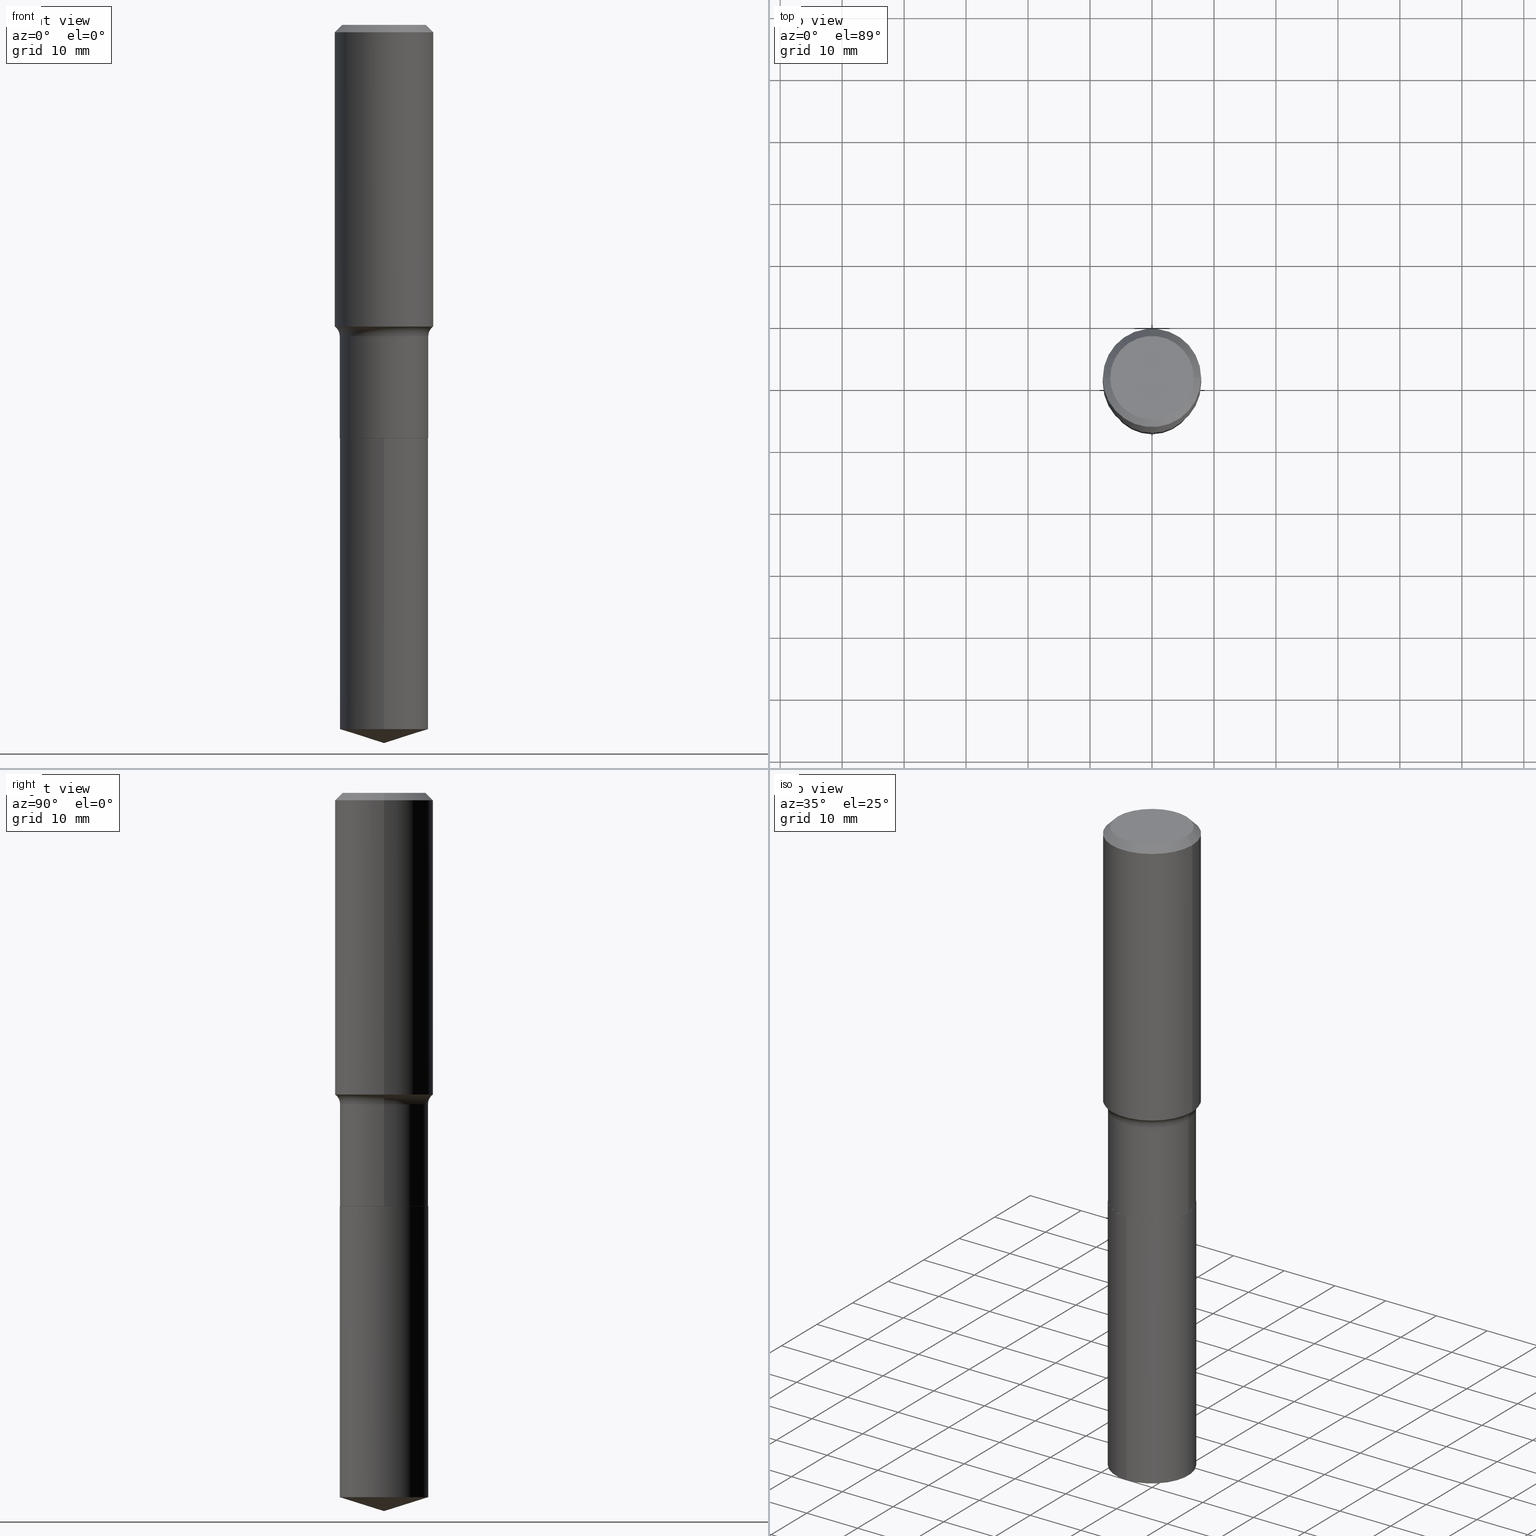
[diagram: canonical four-view strip — front | top / right | iso, engineering-drawing reading convention]
A machine part, canonical four-view strip (front | top / right | iso — engineering-drawing reading convention). The complete STEP part file that produces these views, byte-faithful:
ISO-10303-21;
HEADER;
FILE_DESCRIPTION (( 'STEP AP203' ),
    '1' );
FILE_NAME ('51366.STEP',
    '2024-04-19T12:53:06',
    ( '' ),
    ( '' ),
    'SwSTEP 2.0',
    'SolidWorks 2023',
    '' );
FILE_SCHEMA (( 'CONFIG_CONTROL_DESIGN' ));
ENDSEC;

DATA;
#1 = AXIS2_PLACEMENT_3D ( 'NONE', #376, #208, #325 ) ;
#2 = ORIENTED_EDGE ( 'NONE', *, *, #140, .F. ) ;
#3 = CLOSED_SHELL ( 'NONE', ( #11, #237, #22, #327, #66, #229, #410, #111, #41, #151, #459, #89 ) ) ;
#4 = CIRCLE ( 'NONE', #393, 0.2812500000000000555 ) ;
#5 = EDGE_LOOP ( 'NONE', ( #153, #418 ) ) ;
#6 = DIRECTION ( 'NONE',  ( -2.445244707240388193E-29, 3.491802261286945362E-15, 1.000000000000000000 ) ) ;
#7 = CC_DESIGN_PERSON_AND_ORGANIZATION_ASSIGNMENT ( #19, #370, ( #315 ) ) ;
#8 = DIRECTION ( 'NONE',  ( -1.000000000000000000, 6.982962677686266711E-15, 0.000000000000000000 ) ) ;
#9 = VECTOR ( 'NONE', #10, 39.37007874015748143 ) ;
#10 = DIRECTION ( 'NONE',  ( -2.445244707240388193E-29, 3.491802261286945362E-15, 1.000000000000000000 ) ) ;
#11 = ADVANCED_FACE ( 'NONE', ( #268 ), #414, .T. ) ;
#12 = CARTESIAN_POINT ( 'NONE',  ( 0.000000000000000000, 0.000000000000000000, 0.000000000000000000 ) ) ;
#13 = APPLICATION_PROTOCOL_DEFINITION ( 'international standard', 'config_control_design', 1994, #154 ) ;
#14 = EDGE_CURVE ( 'NONE', #181, #228, #188, .T. ) ;
#15 = CARTESIAN_POINT ( 'NONE',  ( 0.3592500000000000138, -9.415128578324415923E-15, -1.978099999999999969 ) ) ;
#16 = CIRCLE ( 'NONE', #333, 0.07800000000000002764 ) ;
#17 = AXIS2_PLACEMENT_3D ( 'NONE', #423, #422, #42 ) ;
#18 = DIRECTION ( 'NONE',  ( 0.7071067811865453523, -7.319954787623248157E-15, -0.7071067811865496822 ) ) ;
#19 = PERSON_AND_ORGANIZATION ( #47, #49 ) ;
#20 = CARTESIAN_POINT ( 'NONE',  ( -0.3125000000000000555, 2.220446049250313475E-15, -1.537167215704658512E-29 ) ) ;
#21 = ORIENTED_EDGE ( 'NONE', *, *, #488, .F. ) ;
#22 = ADVANCED_FACE ( 'NONE', ( #269 ), #82, .T. ) ;
#23 = APPROVAL_ROLE ( '' ) ;
#24 = EDGE_CURVE ( 'NONE', #148, #383, #233, .T. ) ;
#25 = LENGTH_MEASURE_WITH_UNIT ( LENGTH_MEASURE( 0.02539999999999999897 ), #204 );
#26 = CARTESIAN_POINT ( 'NONE',  ( 1.115761581293109400E-28, -1.592966297429173824E-14, -4.562500000000000000 ) ) ;
#27 = SHAPE_DEFINITION_REPRESENTATION ( #231, #346 ) ;
#28 = AXIS2_PLACEMENT_3D ( 'NONE', #357, #86, #8 ) ;
#29 = DIRECTION ( 'NONE',  ( -0.7071067811865453523, 2.468850131082234184E-15, -0.7071067811865496822 ) ) ;
#30 = VECTOR ( 'NONE', #284, 39.37007874015748854 ) ;
#31 = LINE ( 'NONE', #413, #227 ) ;
#32 = ORIENTED_EDGE ( 'NONE', *, *, #306, .F. ) ;
#33 = CC_DESIGN_PERSON_AND_ORGANIZATION_ASSIGNMENT ( #395, #207, ( #234 ) ) ;
#34 = PLANE ( 'NONE',  #313 ) ;
#35 = LINE ( 'NONE', #26, #30 ) ;
#36 = ORIENTED_EDGE ( 'NONE', *, *, #147, .T. ) ;
#37 = CARTESIAN_POINT ( 'NONE',  ( 0.3125000000000000555, -2.182175836776958741E-15, 1.523805242436230356E-29 ) ) ;
#38 = PRODUCT_DEFINITION_FORMATION_WITH_SPECIFIED_SOURCE ( 'ANY', '', #234, .NOT_KNOWN. ) ;
#39 = VERTEX_POINT ( 'NONE', #490 ) ;
#40 = ORIENTED_EDGE ( 'NONE', *, *, #244, .T. ) ;
#41 = ADVANCED_FACE ( 'NONE', ( #145 ), #392, .T. ) ;
#42 = DIRECTION ( 'NONE',  ( 1.000000000000000000, -6.982962677686264344E-15, 0.000000000000000000 ) ) ;
#43 = ORIENTED_EDGE ( 'NONE', *, *, #134, .T. ) ;
#44 = AXIS2_PLACEMENT_3D ( 'NONE', #476, #55, #293 ) ;
#45 = DIRECTION ( 'NONE',  ( 1.000000000000000000, -6.982962677686264344E-15, 0.000000000000000000 ) ) ;
#46 = CARTESIAN_POINT ( 'NONE',  ( 0.000000000000000000, 0.000000000000000000, 0.000000000000000000 ) ) ;
#47 = PERSON ( 'UNSPECIFIED', 'UNSPECIFIED', 'UNSPECIFIED', ('UNSPECIFIED'), ('UNSPECIFIED'), ('UNSPECIFIED') ) ;
#48 = CARTESIAN_POINT ( 'NONE',  ( -1.963958253099198220E-15, -0.2812500000000091593, -2.624999999999998224 ) ) ;
#49 = ORGANIZATION ( 'UNSPECIFIED', 'UNSPECIFIED', '' ) ;
#50 = CC_DESIGN_PERSON_AND_ORGANIZATION_ASSIGNMENT ( #129, #214, ( #38 ) ) ;
#51 = DIRECTION ( 'NONE',  ( -1.000000000000000000, 6.982962677686265922E-15, -4.876176775795935793E-29 ) ) ;
#52 = DATE_AND_TIME ( #438, #248 ) ;
#53 = ADVANCED_FACE ( 'NONE', ( #314 ), #238, .F. ) ;
#54 = DIRECTION ( 'NONE',  ( -6.982962677686266711E-15, -1.000000000000000000, 3.500519750498668933E-15 ) ) ;
#55 = DIRECTION ( 'NONE',  ( -2.445468806185136597E-29, 3.491481338843145583E-15, 1.000000000000000000 ) ) ;
#56 = CARTESIAN_POINT ( 'NONE',  ( 4.837381845514818242E-29, -6.906499236365626153E-15, -1.978099999999999969 ) ) ;
#57 = PERSON_AND_ORGANIZATION ( #47, #49 ) ;
#58 = CIRCLE ( 'NONE', #344, 0.2656250000000000000 ) ;
#59 = LINE ( 'NONE', #482, #250 ) ;
#60 = EDGE_CURVE ( 'NONE', #270, #409, #178, .T. ) ;
#61 = DIRECTION ( 'NONE',  ( -0.7071067811864509833, 7.493145998870005484E-15, 0.7071067811866440511 ) ) ;
#62 = DATE_TIME_ROLE ( 'creation_date' ) ;
#63 = CYLINDRICAL_SURFACE ( 'NONE', #1, 0.2812500000000000000 ) ;
#64 = CARTESIAN_POINT ( 'NONE',  ( 4.684692963426050307E-29, -6.688499979489643797E-15, -1.915662531281288938 ) ) ;
#65 = ORIENTED_EDGE ( 'NONE', *, *, #190, .T. ) ;
#66 = ADVANCED_FACE ( 'NONE', ( #470 ), #390, .T. ) ;
#67 = VECTOR ( 'NONE', #29, 39.37007874015748143 ) ;
#68 = CLOSED_SHELL ( 'NONE', ( #419, #74, #380, #159, #53 ) ) ;
#69 = FACE_OUTER_BOUND ( 'NONE', #115, .T. ) ;
#70 = AXIS2_PLACEMENT_3D ( 'NONE', #294, #246, #479 ) ;
#71 = DIRECTION ( 'NONE',  ( -2.445468806185136597E-29, 3.491481338843145583E-15, 1.000000000000000000 ) ) ;
#72 = EDGE_LOOP ( 'NONE', ( #210, #477, #424, #109 ) ) ;
#73 = DIRECTION ( 'NONE',  ( 1.000000000000000000, 0.000000000000000000, 0.000000000000000000 ) ) ;
#74 = ADVANCED_FACE ( 'NONE', ( #273 ), #84, .T. ) ;
#75 = ORIENTED_EDGE ( 'NONE', *, *, #60, .F. ) ;
#76 = ORIENTED_EDGE ( 'NONE', *, *, #80, .F. ) ;
#77 = VECTOR ( 'NONE', #255, 39.37007874015748143 ) ;
#78 = AXIS2_PLACEMENT_3D ( 'NONE', #387, #464, #117 ) ;
#79 = ORIENTED_EDGE ( 'NONE', *, *, #469, .F. ) ;
#80 = EDGE_CURVE ( 'NONE', #148, #39, #150, .T. ) ;
#81 = ORIENTED_EDGE ( 'NONE', *, *, #384, .F. ) ;
#82 = CYLINDRICAL_SURFACE ( 'NONE', #78, 0.3125000000000000555 ) ;
#83 = ORIENTED_EDGE ( 'NONE', *, *, #332, .T. ) ;
#84 = CONICAL_SURFACE ( 'NONE', #356, 124.8659371009163266, 1.265363707695894568 ) ;
#85 = CARTESIAN_POINT ( 'NONE',  ( 1.094017835362827673E-28, -1.562086010770990401E-14, -4.473822215627787813 ) ) ;
#86 = DIRECTION ( 'NONE',  ( 2.445468806185136597E-29, -3.491481338843145583E-15, -1.000000000000000000 ) ) ;
#87 = DIRECTION ( 'NONE',  ( 1.000000000000000000, -6.982962677686268288E-15, 4.876286914311434227E-29 ) ) ;
#88 = LOCAL_TIME ( 8, 53, 6.000000000000000000, #286 ) ;
#89 = ADVANCED_FACE ( 'NONE', ( #236 ), #434, .T. ) ;
#90 = AXIS2_PLACEMENT_3D ( 'NONE', #98, #71, #180 ) ;
#91 = CARTESIAN_POINT ( 'NONE',  ( -0.2812499999999999445, -6.036544560754447675E-15, -1.978099999999999969 ) ) ;
#92 = PERSON_AND_ORGANIZATION ( #47, #49 ) ;
#93 = DIRECTION ( 'NONE',  ( -2.445468806185136597E-29, 3.491481338843145583E-15, 1.000000000000000000 ) ) ;
#94 = APPROVAL_STATUS ( 'not_yet_approved' ) ;
#95 = FACE_OUTER_BOUND ( 'NONE', #259, .T. ) ;
#96 = DATE_AND_TIME ( #162, #388 ) ;
#97 = CARTESIAN_POINT ( 'NONE',  ( -0.3592500000000000138, -4.353874458147466532E-15, -1.978099999999999969 ) ) ;
#98 = CARTESIAN_POINT ( 'NONE',  ( 1.146313502899289261E-30, -1.636631877582734044E-16, -0.04687500000000027062 ) ) ;
#99 = EDGE_LOOP ( 'NONE', ( #254, #257, #304 ) ) ;
#100 = PERSON_AND_ORGANIZATION ( #47, #49 ) ;
#101 =( NAMED_UNIT ( * ) SI_UNIT ( $, .STERADIAN. ) SOLID_ANGLE_UNIT ( ) );
#102 = CARTESIAN_POINT ( 'NONE',  ( 0.2656250000000000000, -2.064944296359970168E-15, 6.505936120484021373E-18 ) ) ;
#103 = EDGE_CURVE ( 'NONE', #232, #148, #489, .T. ) ;
#104 = ORIENTED_EDGE ( 'NONE', *, *, #244, .F. ) ;
#105 = CYLINDRICAL_SURFACE ( 'NONE', #267, 0.2812499999999999445 ) ;
#106 = ORIENTED_EDGE ( 'NONE', *, *, #226, .T. ) ;
#107 = CARTESIAN_POINT ( 'NONE',  ( 0.000000000000000000, 0.000000000000000000, 0.000000000000000000 ) ) ;
#108 = AXIS2_PLACEMENT_3D ( 'NONE', #212, #130, #175 ) ;
#109 = ORIENTED_EDGE ( 'NONE', *, *, #24, .F. ) ;
#110 = ORIENTED_EDGE ( 'NONE', *, *, #226, .F. ) ;
#111 = ADVANCED_FACE ( 'NONE', ( #354 ), #473, .T. ) ;
#112 = VERTEX_POINT ( 'NONE', #91 ) ;
#113 = APPROVAL_PERSON_ORGANIZATION ( #474, #397, #23 ) ;
#114 = CIRCLE ( 'NONE', #375, 0.2812499999999999445 ) ;
#115 = EDGE_LOOP ( 'NONE', ( #225, #378, #311, #189 ) ) ;
#116 = EDGE_LOOP ( 'NONE', ( #36, #249, #184, #295 ) ) ;
#117 = DIRECTION ( 'NONE',  ( 1.000000000000000000, -6.982962677686266711E-15, 4.876176775795936353E-29 ) ) ;
#118 = DIRECTION ( 'NONE',  ( -2.445468806185136597E-29, 3.491481338843145583E-15, 1.000000000000000000 ) ) ;
#119 = DIRECTION ( 'NONE',  ( 1.000000000000000000, -6.982962677686264344E-15, 0.000000000000000000 ) ) ;
#120 = EDGE_CURVE ( 'NONE', #450, #228, #219, .T. ) ;
#121 = CARTESIAN_POINT ( 'NONE',  ( -7.955031918821650812E-47, 1.135767727816383927E-32, 3.252968060235157842E-18 ) ) ;
#122 = DIRECTION ( 'NONE',  ( -6.982962677686266711E-15, -1.000000000000000000, 3.885294924322507688E-15 ) ) ;
#123 = AXIS2_PLACEMENT_3D ( 'NONE', #107, #417, #73 ) ;
#124 = AXIS2_PLACEMENT_3D ( 'NONE', #256, #398, #258 ) ;
#125 = DIRECTION ( 'NONE',  ( -6.982962677686266711E-15, -1.000000000000000000, 3.885294924322507688E-15 ) ) ;
#126 = APPROVAL_STATUS ( 'not_yet_approved' ) ;
#127 = LINE ( 'NONE', #215, #77 ) ;
#128 = CARTESIAN_POINT ( 'NONE',  ( 0.3125000000000000000, -2.307568812061876870E-15, -0.04687500000000027062 ) ) ;
#129 = PERSON_AND_ORGANIZATION ( #47, #49 ) ;
#130 = DIRECTION ( 'NONE',  ( -2.445468806185136597E-29, 3.491481338843145583E-15, 1.000000000000000000 ) ) ;
#131 = CARTESIAN_POINT ( 'NONE',  ( 4.837381845514818242E-29, -6.906499236365626153E-15, -1.978099999999999969 ) ) ;
#132 = APPROVAL_PERSON_ORGANIZATION ( #100, #386, #319 ) ;
#133 = AXIS2_PLACEMENT_3D ( 'NONE', #121, #276, #51 ) ;
#134 = EDGE_CURVE ( 'NONE', #224, #310, #277, .T. ) ;
#135 = CARTESIAN_POINT ( 'NONE',  ( -0.2656250000000000000, 1.936681055139549843E-15, 6.505936120457058354E-18 ) ) ;
#136 = DIRECTION ( 'NONE',  ( -2.445468806185136597E-29, 3.491481338843145583E-15, 1.000000000000000000 ) ) ;
#137 = ORIENTED_EDGE ( 'NONE', *, *, #469, .T. ) ;
#138 = DIRECTION ( 'NONE',  ( -2.445468806185136597E-29, 3.491481338843145583E-15, 1.000000000000000000 ) ) ;
#139 = DIRECTION ( 'NONE',  ( 1.000000000000000000, -6.982962677686268288E-15, 0.000000000000000000 ) ) ;
#140 = EDGE_CURVE ( 'NONE', #228, #270, #274, .T. ) ;
#141 = EDGE_LOOP ( 'NONE', ( #65, #196, #75, #2 ) ) ;
#142 = CARTESIAN_POINT ( 'NONE',  ( 6.419355616235982445E-29, -9.165138514463255034E-15, -2.624999999999999556 ) ) ;
#143 = FACE_OUTER_BOUND ( 'NONE', #491, .T. ) ;
#144 = ORIENTED_EDGE ( 'NONE', *, *, #103, .T. ) ;
#145 = FACE_OUTER_BOUND ( 'NONE', #402, .T. ) ;
#146 = ORIENTED_EDGE ( 'NONE', *, *, #147, .F. ) ;
#147 = EDGE_CURVE ( 'NONE', #310, #224, #290, .T. ) ;
#148 = VERTEX_POINT ( 'NONE', #316 ) ;
#149 = SECURITY_CLASSIFICATION ( '', '', #328 ) ;
#150 = CIRCLE ( 'NONE', #321, 0.07800000000000002764 ) ;
#151 = ADVANCED_FACE ( 'NONE', ( #396 ), #197, .F. ) ;
#152 = AXIS2_PLACEMENT_3D ( 'NONE', #56, #408, #329 ) ;
#153 = ORIENTED_EDGE ( 'NONE', *, *, #384, .T. ) ;
#154 = APPLICATION_CONTEXT ( 'configuration controlled 3d designs of mechanical parts and assemblies' ) ;
#155 = EDGE_LOOP ( 'NONE', ( #421, #43, #443, #104 ) ) ;
#156 = CARTESIAN_POINT ( 'NONE',  ( -1.591006383764330162E-46, 2.271535455632767854E-32, 6.505936120470315685E-18 ) ) ;
#157 = DIRECTION ( 'NONE',  ( -2.445468806185136597E-29, 3.491481338843145583E-15, 1.000000000000000000 ) ) ;
#158 = VECTOR ( 'NONE', #186, 39.37007874015748143 ) ;
#159 = ADVANCED_FACE ( 'NONE', ( #430 ), #312, .T. ) ;
#160 = DIRECTION ( 'NONE',  ( 6.982962677686265922E-15, 1.000000000000000000, -3.491802261286945362E-15 ) ) ;
#161 = LINE ( 'NONE', #209, #200 ) ;
#162 = CALENDAR_DATE ( 2024, 19, 4 ) ;
#163 = EDGE_CURVE ( 'NONE', #301, #348, #58, .T. ) ;
#164 = CARTESIAN_POINT ( 'NONE',  ( 6.419355616235982445E-29, -9.165138514463255034E-15, -2.624999999999999556 ) ) ;
#165 = AXIS2_PLACEMENT_3D ( 'NONE', #199, #93, #45 ) ;
#166 = AXIS2_PLACEMENT_3D ( 'NONE', #221, #407, #484 ) ;
#167 = DATE_AND_TIME ( #202, #412 ) ;
#168 = CARTESIAN_POINT ( 'NONE',  ( 1.998401444325391424E-15, 0.2812499999999908407, -2.625000000000000444 ) ) ;
#169 = LINE ( 'NONE', #20, #179 ) ;
#170 = ORIENTED_EDGE ( 'NONE', *, *, #488, .T. ) ;
#171 = APPROVAL_DATE_TIME ( #292, #397 ) ;
#172 = CARTESIAN_POINT ( 'NONE',  ( 4.837381845514818242E-29, -6.906499236365626153E-15, -1.978099999999999969 ) ) ;
#173 = DIRECTION ( 'NONE',  ( -2.445244707240388193E-29, 3.491802261286945362E-15, 1.000000000000000000 ) ) ;
#174 = EDGE_LOOP ( 'NONE', ( #32, #345, #223, #177 ) ) ;
#175 = DIRECTION ( 'NONE',  ( 1.000000000000000000, -6.982962677686266711E-15, 0.000000000000000000 ) ) ;
#176 = LINE ( 'NONE', #253, #279 ) ;
#177 = ORIENTED_EDGE ( 'NONE', *, *, #317, .F. ) ;
#178 = CIRCLE ( 'NONE', #471, 0.2812500000000000000 ) ;
#179 = VECTOR ( 'NONE', #455, 39.37007874015748143 ) ;
#180 = DIRECTION ( 'NONE',  ( 1.000000000000000000, -6.982962677686266711E-15, 0.000000000000000000 ) ) ;
#181 = VERTEX_POINT ( 'NONE', #358 ) ;
#182 = DIRECTION ( 'NONE',  ( -1.000000000000000000, 7.105427357601001859E-15, 0.000000000000000000 ) ) ;
#183 = CARTESIAN_POINT ( 'NONE',  ( 0.2807499999999999996, -1.112560528622367375E-14, -2.624999999999999556 ) ) ;
#184 = ORIENTED_EDGE ( 'NONE', *, *, #271, .F. ) ;
#185 = EDGE_CURVE ( 'NONE', #224, #457, #161, .T. ) ;
#186 = DIRECTION ( 'NONE',  ( -2.445468806185136877E-29, 3.491481338843145188E-15, 1.000000000000000000 ) ) ;
#187 = AXIS2_PLACEMENT_3D ( 'NONE', #485, #371, #205 ) ;
#188 = LINE ( 'NONE', #302, #336 ) ;
#189 = ORIENTED_EDGE ( 'NONE', *, *, #275, .T. ) ;
#190 = EDGE_CURVE ( 'NONE', #228, #450, #400, .T. ) ;
#191 = DIRECTION ( 'NONE',  ( -6.659769872151638399E-15, -0.9537169507482275987, 0.3007057995042710652 ) ) ;
#192 = CC_DESIGN_APPROVAL ( #397, ( #38 ) ) ;
#193 = AXIS2_PLACEMENT_3D ( 'NONE', #164, #429, #160 ) ;
#194 = EDGE_CURVE ( 'NONE', #310, #335, #31, .T. ) ;
#195 = CIRCLE ( 'NONE', #435, 0.2812500000000000555 ) ;
#196 = ORIENTED_EDGE ( 'NONE', *, *, #306, .T. ) ;
#197 = PLANE ( 'NONE',  #133 ) ;
#198 = CARTESIAN_POINT ( 'NONE',  ( -8.511245942649316841E-28, 1.215420245762202743E-13, 34.80757874015748143 ) ) ;
#199 = CARTESIAN_POINT ( 'NONE',  ( 6.419355616235982445E-29, -9.165138514463255034E-15, -2.624999999999999556 ) ) ;
#200 = VECTOR ( 'NONE', #61, 39.37007874015748143 ) ;
#201 = CARTESIAN_POINT ( 'NONE',  ( 6.419355616235982445E-29, -9.165138514463255034E-15, -2.624999999999999556 ) ) ;
#202 = CALENDAR_DATE ( 2024, 19, 4 ) ;
#203 = DIRECTION ( 'NONE',  ( -6.982962677686266711E-15, -1.000000000000000000, 3.491481338843145583E-15 ) ) ;
#204 =( LENGTH_UNIT ( ) NAMED_UNIT ( * ) SI_UNIT ( $, .METRE. ) );
#205 = DIRECTION ( 'NONE',  ( -6.982962677686266711E-15, -1.000000000000000000, 3.885294924322507688E-15 ) ) ;
#206 = AXIS2_PLACEMENT_3D ( 'NONE', #172, #138, #445 ) ;
#207 = PERSON_AND_ORGANIZATION_ROLE ( 'design_owner' ) ;
#208 = DIRECTION ( 'NONE',  ( -2.445244707240388193E-29, 3.491802261286945362E-15, 1.000000000000000000 ) ) ;
#209 = CARTESIAN_POINT ( 'NONE',  ( -0.2807499999999999996, -7.170289783816773371E-15, -2.624999999999999556 ) ) ;
#210 = ORIENTED_EDGE ( 'NONE', *, *, #337, .T. ) ;
#211 = COORDINATED_UNIVERSAL_TIME_OFFSET ( 5, 0, .BEHIND. ) ;
#212 = CARTESIAN_POINT ( 'NONE',  ( 1.146313502899289261E-30, -1.636631877582734044E-16, -0.04687500000000027062 ) ) ;
#213 = DIRECTION ( 'NONE',  ( 1.000000000000000000, -6.982962677686268288E-15, 4.876176775795935793E-29 ) ) ;
#214 = PERSON_AND_ORGANIZATION_ROLE ( 'design_supplier' ) ;
#215 = CARTESIAN_POINT ( 'NONE',  ( 0.2812499999999999445, -1.963958253099262512E-15, 1.371424718192606732E-29 ) ) ;
#216 = DIRECTION ( 'NONE',  ( -2.445468806185136597E-29, 3.491481338843145583E-15, 1.000000000000000000 ) ) ;
#217 = VERTEX_POINT ( 'NONE', #442 ) ;
#218 = APPROVAL_PERSON_ORGANIZATION ( #57, #351, #360 ) ;
#219 = CIRCLE ( 'NONE', #426, 0.2812500000000000000 ) ;
#220 = CONICAL_SURFACE ( 'NONE', #124, 0.3125000000000000000, 0.7853981633974452814 ) ;
#221 = CARTESIAN_POINT ( 'NONE',  ( -1.591006383764330162E-46, 2.271535455632767854E-32, 6.505936120470315685E-18 ) ) ;
#222 = CARTESIAN_POINT ( 'NONE',  ( -1.963958253099198220E-15, -0.2812500000000091593, -2.624999999999998224 ) ) ;
#223 = ORIENTED_EDGE ( 'NONE', *, *, #140, .T. ) ;
#224 = VERTEX_POINT ( 'NONE', #334 ) ;
#225 = ORIENTED_EDGE ( 'NONE', *, *, #420, .F. ) ;
#226 = EDGE_CURVE ( 'NONE', #457, #112, #59, .T. ) ;
#227 = VECTOR ( 'NONE', #247, 39.37007874015748143 ) ;
#228 = VERTEX_POINT ( 'NONE', #447 ) ;
#229 = ADVANCED_FACE ( 'NONE', ( #95 ), #105, .T. ) ;
#230 = EDGE_LOOP ( 'NONE', ( #305, #487 ) ) ;
#231 = PRODUCT_DEFINITION_SHAPE ( 'NONE', 'NONE',  #315 ) ;
#232 = VERTEX_POINT ( 'NONE', #296 ) ;
#233 = LINE ( 'NONE', #37, #158 ) ;
#234 = PRODUCT ( '51366', '51366', '', ( #406 ) ) ;
#235 = DIRECTION ( 'NONE',  ( -2.445468806185136597E-29, 3.491481338843145583E-15, 1.000000000000000000 ) ) ;
#236 = FACE_OUTER_BOUND ( 'NONE', #155, .T. ) ;
#237 = ADVANCED_FACE ( 'NONE', ( #143 ), #220, .T. ) ;
#238 = PLANE ( 'NONE',  #193 ) ;
#239 = CC_DESIGN_DATE_AND_TIME_ASSIGNMENT ( #373, #478, ( #149 ) ) ;
#240 = CALENDAR_DATE ( 2024, 19, 4 ) ;
#241 = EDGE_CURVE ( 'NONE', #217, #383, #382, .T. ) ;
#242 = DIRECTION ( 'NONE',  ( -6.982962677686266711E-15, -1.000000000000000000, 3.885294924322507688E-15 ) ) ;
#243 = PERSON_AND_ORGANIZATION ( #47, #49 ) ;
#244 = EDGE_CURVE ( 'NONE', #457, #335, #4, .T. ) ;
#245 = LINE ( 'NONE', #252, #67 ) ;
#246 = DIRECTION ( 'NONE',  ( -2.445244707240388193E-29, 3.491802261286945362E-15, 1.000000000000000000 ) ) ;
#247 = DIRECTION ( 'NONE',  ( 0.7071067811864509833, -2.468850131081245741E-15, 0.7071067811866440511 ) ) ;
#248 = LOCAL_TIME ( 8, 53, 6.000000000000000000, #366 ) ;
#249 = ORIENTED_EDGE ( 'NONE', *, *, #185, .T. ) ;
#250 = VECTOR ( 'NONE', #452, 39.37007874015748143 ) ;
#251 = COORDINATED_UNIVERSAL_TIME_OFFSET ( 5, 0, .BEHIND. ) ;
#252 = CARTESIAN_POINT ( 'NONE',  ( -0.3125000000000000000, 2.018512649018685091E-15, -0.04687500000000027062 ) ) ;
#253 = CARTESIAN_POINT ( 'NONE',  ( 1.998401444325345670E-15, 0.2812499999999908407, -2.625000000000000444 ) ) ;
#254 = ORIENTED_EDGE ( 'NONE', *, *, #14, .F. ) ;
#255 = DIRECTION ( 'NONE',  ( -2.445468806185136877E-29, 3.491481338843145188E-15, 1.000000000000000000 ) ) ;
#256 = CARTESIAN_POINT ( 'NONE',  ( 1.146313502899289261E-30, -1.636631877582734044E-16, -0.04687500000000027062 ) ) ;
#257 = ORIENTED_EDGE ( 'NONE', *, *, #280, .T. ) ;
#258 = DIRECTION ( 'NONE',  ( -1.000000000000000000, 6.982962677686266711E-15, 0.000000000000000000 ) ) ;
#259 = EDGE_LOOP ( 'NONE', ( #110, #40, #137, #463 ) ) ;
#260 = CC_DESIGN_APPROVAL ( #351, ( #149 ) ) ;
#261 = AXIS2_PLACEMENT_3D ( 'NONE', #12, #281, #439 ) ;
#262 = CIRCLE ( 'NONE', #44, 0.2812499999999999445 ) ;
#263 = ORIENTED_EDGE ( 'NONE', *, *, #271, .T. ) ;
#264 = UNCERTAINTY_MEASURE_WITH_UNIT (LENGTH_MEASURE( 1.000000000000000082E-05 ), #363, 'distance_accuracy_value', 'NONE');
#265 = ORIENTED_EDGE ( 'NONE', *, *, #24, .T. ) ;
#266 = ORIENTED_EDGE ( 'NONE', *, *, #372, .T. ) ;
#267 = AXIS2_PLACEMENT_3D ( 'NONE', #374, #364, #213 ) ;
#268 = FACE_OUTER_BOUND ( 'NONE', #116, .T. ) ;
#269 = FACE_OUTER_BOUND ( 'NONE', #72, .T. ) ;
#270 = VERTEX_POINT ( 'NONE', #222 ) ;
#271 = EDGE_CURVE ( 'NONE', #335, #457, #195, .T. ) ;
#272 = AXIS2_PLACEMENT_3D ( 'NONE', #353, #6, #122 ) ;
#273 = FACE_OUTER_BOUND ( 'NONE', #99, .T. ) ;
#274 = LINE ( 'NONE', #48, #9 ) ;
#275 = EDGE_CURVE ( 'NONE', #39, #112, #114, .T. ) ;
#276 = DIRECTION ( 'NONE',  ( 2.438088387897960049E-29, -3.491481338843145188E-15, -1.000000000000000000 ) ) ;
#277 = CIRCLE ( 'NONE', #481, 0.2807499999999999996 ) ;
#278 = DIRECTION ( 'NONE',  ( -2.445468806185136597E-29, 3.491481338843145583E-15, 1.000000000000000000 ) ) ;
#279 = VECTOR ( 'NONE', #173, 39.37007874015748143 ) ;
#280 = EDGE_CURVE ( 'NONE', #181, #450, #35, .T. ) ;
#281 = DIRECTION ( 'NONE',  ( -2.445468806185136597E-29, 3.491481338843145583E-15, 1.000000000000000000 ) ) ;
#282 = COORDINATED_UNIVERSAL_TIME_OFFSET ( 5, 0, .BEHIND. ) ;
#283 = DIRECTION ( 'NONE',  ( -6.982962677686266711E-15, -1.000000000000000000, 3.500519750498668933E-15 ) ) ;
#284 = DIRECTION ( 'NONE',  ( 6.776566513254262871E-15, 0.9537169507482295971, 0.3007057995042644039 ) ) ;
#285 = ORIENTED_EDGE ( 'NONE', *, *, #287, .F. ) ;
#286 = COORDINATED_UNIVERSAL_TIME_OFFSET ( 5, 0, .BEHIND. ) ;
#287 = EDGE_CURVE ( 'NONE', #232, #217, #169, .T. ) ;
#288 = CARTESIAN_POINT ( 'NONE',  ( 0.3125000000000000000, -2.345839024535231998E-15, -0.04687500000000027062 ) ) ;
#289 = CARTESIAN_POINT ( 'NONE',  ( 6.418132881832889644E-29, -9.163392773793832742E-15, -2.624499999999999389 ) ) ;
#290 = CIRCLE ( 'NONE', #165, 0.2807499999999999996 ) ;
#291 = AXIS2_PLACEMENT_3D ( 'NONE', #338, #475, #283 ) ;
#292 = DATE_AND_TIME ( #448, #88 ) ;
#293 = DIRECTION ( 'NONE',  ( 1.000000000000000000, -6.982962677686268288E-15, 0.000000000000000000 ) ) ;
#294 = CARTESIAN_POINT ( 'NONE',  ( 6.419355616235982445E-29, -9.165138514463255034E-15, -2.624999999999999556 ) ) ;
#295 = ORIENTED_EDGE ( 'NONE', *, *, #194, .F. ) ;
#296 = CARTESIAN_POINT ( 'NONE',  ( -0.3125000000000001665, -4.468053930239329138E-15, -1.915662531281288938 ) ) ;
#297 = PRODUCT_RELATED_PRODUCT_CATEGORY ( 'detail', '', ( #234 ) ) ;
#298 = ORIENTED_EDGE ( 'NONE', *, *, #280, .F. ) ;
#299 = DIRECTION ( 'NONE',  ( 1.000000000000000000, -6.982962677686265922E-15, 4.876176775795935793E-29 ) ) ;
#300 = CARTESIAN_POINT ( 'NONE',  ( 6.418132881832889644E-29, -9.163392773793832742E-15, -2.624499999999999389 ) ) ;
#301 = VERTEX_POINT ( 'NONE', #102 ) ;
#302 = CARTESIAN_POINT ( 'NONE',  ( 1.115642897678427125E-28, -1.593134781712168797E-14, -4.562500000000000000 ) ) ;
#303 = APPLICATION_CONTEXT ( 'configuration controlled 3d designs of mechanical parts and assemblies' ) ;
#304 = ORIENTED_EDGE ( 'NONE', *, *, #190, .F. ) ;
#305 = ORIENTED_EDGE ( 'NONE', *, *, #60, .T. ) ;
#306 = EDGE_CURVE ( 'NONE', #450, #409, #176, .T. ) ;
#307 =( GEOMETRIC_REPRESENTATION_CONTEXT ( 3 ) GLOBAL_UNCERTAINTY_ASSIGNED_CONTEXT ( ( #264 ) ) GLOBAL_UNIT_ASSIGNED_CONTEXT ( ( #363, #451, #101 ) ) REPRESENTATION_CONTEXT ( 'NONE', 'WORKASPACE' ) );
#308 = CONICAL_SURFACE ( 'NONE', #291, 124.8659371009163266, 1.265363707695894568 ) ;
#309 = AXIS2_PLACEMENT_3D ( 'NONE', #64, #216, #139 ) ;
#310 = VERTEX_POINT ( 'NONE', #183 ) ;
#311 = ORIENTED_EDGE ( 'NONE', *, *, #80, .T. ) ;
#312 = CYLINDRICAL_SURFACE ( 'NONE', #272, 0.2812500000000000000 ) ;
#313 = AXIS2_PLACEMENT_3D ( 'NONE', #142, #441, #299 ) ;
#314 = FACE_OUTER_BOUND ( 'NONE', #230, .T. ) ;
#315 = PRODUCT_DEFINITION ( 'UNKNOWN', '', #38, #379 ) ;
#316 = CARTESIAN_POINT ( 'NONE',  ( 0.3125000000000001665, -8.870675816266601355E-15, -1.915662531281288938 ) ) ;
#317 = EDGE_CURVE ( 'NONE', #409, #270, #472, .T. ) ;
#318 = DIRECTION ( 'NONE',  ( -2.445244707240388193E-29, 3.491802261286945362E-15, 1.000000000000000000 ) ) ;
#319 = APPROVAL_ROLE ( '' ) ;
#320 = CC_DESIGN_SECURITY_CLASSIFICATION ( #149, ( #38 ) ) ;
#321 = AXIS2_PLACEMENT_3D ( 'NONE', #15, #203, #468 ) ;
#322 = DIRECTION ( 'NONE',  ( 1.000000000000000000, -6.982962677686268288E-15, 0.000000000000000000 ) ) ;
#323 = CIRCLE ( 'NONE', #108, 0.3125000000000000000 ) ;
#324 = PERSON_AND_ORGANIZATION_ROLE ( 'creator' ) ;
#325 = DIRECTION ( 'NONE',  ( -6.982962677686266711E-15, -1.000000000000000000, 3.885294924322507688E-15 ) ) ;
#326 = FACE_OUTER_BOUND ( 'NONE', #415, .T. ) ;
#327 = ADVANCED_FACE ( 'NONE', ( #326 ), #462, .F. ) ;
#328 = SECURITY_CLASSIFICATION_LEVEL ( 'unclassified' ) ;
#329 = DIRECTION ( 'NONE',  ( 1.000000000000000000, -6.982962677686267499E-15, 4.883557194083113462E-29 ) ) ;
#330 = ORIENTED_EDGE ( 'NONE', *, *, #14, .T. ) ;
#331 = DIRECTION ( 'NONE',  ( 7.105427357601001859E-15, 1.000000000000000000, -3.491481338843145583E-15 ) ) ;
#332 = EDGE_CURVE ( 'NONE', #301, #383, #404, .T. ) ;
#333 = AXIS2_PLACEMENT_3D ( 'NONE', #97, #331, #182 ) ;
#334 = CARTESIAN_POINT ( 'NONE',  ( -0.2807499999999999996, -7.167640556642661381E-15, -2.624999999999999556 ) ) ;
#335 = VERTEX_POINT ( 'NONE', #449 ) ;
#336 = VECTOR ( 'NONE', #191, 39.37007874015748143 ) ;
#337 = EDGE_CURVE ( 'NONE', #148, #232, #416, .T. ) ;
#338 = CARTESIAN_POINT ( 'NONE',  ( -8.511245942649316841E-28, 1.215420245762202743E-13, 34.80757874015748143 ) ) ;
#339 = DIRECTION ( 'NONE',  ( 1.000000000000000000, -6.982962677686268288E-15, 0.000000000000000000 ) ) ;
#340 = EDGE_LOOP ( 'NONE', ( #146, #483 ) ) ;
#341 = FACE_OUTER_BOUND ( 'NONE', #141, .T. ) ;
#342 = DIRECTION ( 'NONE',  ( 1.000000000000000000, -6.982962677686268288E-15, 0.000000000000000000 ) ) ;
#343 = ORIENTED_EDGE ( 'NONE', *, *, #241, .T. ) ;
#344 = AXIS2_PLACEMENT_3D ( 'NONE', #156, #118, #87 ) ;
#345 = ORIENTED_EDGE ( 'NONE', *, *, #120, .T. ) ;
#346 = ADVANCED_BREP_SHAPE_REPRESENTATION ( '51366', ( #365, #362, #123 ), #307 ) ;
#347 = EDGE_CURVE ( 'NONE', #112, #39, #262, .T. ) ;
#348 = VERTEX_POINT ( 'NONE', #135 ) ;
#349 = EDGE_LOOP ( 'NONE', ( #285, #144, #265, #369 ) ) ;
#350 = VECTOR ( 'NONE', #18, 39.37007874015748143 ) ;
#351 = APPROVAL ( #440, 'UNSPECIFIED' ) ;
#352 = EDGE_LOOP ( 'NONE', ( #298, #330, #460 ) ) ;
#353 = CARTESIAN_POINT ( 'NONE',  ( 6.419355616235982445E-29, -9.165138514463255034E-15, -2.624999999999999556 ) ) ;
#354 = FACE_OUTER_BOUND ( 'NONE', #349, .T. ) ;
#355 = CC_DESIGN_APPROVAL ( #386, ( #315 ) ) ;
#356 = AXIS2_PLACEMENT_3D ( 'NONE', #198, #427, #54 ) ;
#357 = CARTESIAN_POINT ( 'NONE',  ( 1.146313502899289261E-30, -1.636631877582734044E-16, -0.04687500000000027062 ) ) ;
#358 = CARTESIAN_POINT ( 'NONE',  ( 1.115642897678426901E-28, -1.593134781712168797E-14, -4.562500000000000000 ) ) ;
#359 = DIRECTION ( 'NONE',  ( -2.445244707240388193E-29, 3.491802261286945362E-15, 1.000000000000000000 ) ) ;
#360 = APPROVAL_ROLE ( '' ) ;
#361 = LOCAL_TIME ( 8, 53, 6.000000000000000000, #282 ) ;
#362 = MANIFOLD_SOLID_BREP ( 'Body-Move/Copy2[2]', #3 ) ;
#363 =( CONVERSION_BASED_UNIT ( 'INCH', #25 ) LENGTH_UNIT ( ) NAMED_UNIT ( #453 ) );
#364 = DIRECTION ( 'NONE',  ( -2.445468806185136597E-29, 3.491481338843145583E-15, 1.000000000000000000 ) ) ;
#365 = MANIFOLD_SOLID_BREP ( 'Body-Move/Copy2[1]', #68 ) ;
#366 = COORDINATED_UNIVERSAL_TIME_OFFSET ( 5, 0, .BEHIND. ) ;
#367 = FACE_OUTER_BOUND ( 'NONE', #340, .T. ) ;
#368 = DIRECTION ( 'NONE',  ( -2.445468806185136597E-29, 3.491481338843145583E-15, 1.000000000000000000 ) ) ;
#369 = ORIENTED_EDGE ( 'NONE', *, *, #241, .F. ) ;
#370 = PERSON_AND_ORGANIZATION_ROLE ( 'creator' ) ;
#371 = DIRECTION ( 'NONE',  ( -2.445244707240388193E-29, 3.491802261286945362E-15, 1.000000000000000000 ) ) ;
#372 = EDGE_CURVE ( 'NONE', #383, #217, #323, .T. ) ;
#373 = DATE_AND_TIME ( #240, #361 ) ;
#374 = CARTESIAN_POINT ( 'NONE',  ( 0.000000000000000000, 0.000000000000000000, 0.000000000000000000 ) ) ;
#375 = AXIS2_PLACEMENT_3D ( 'NONE', #131, #368, #377 ) ;
#376 = CARTESIAN_POINT ( 'NONE',  ( 6.419355616235982445E-29, -9.165138514463255034E-15, -2.624999999999999556 ) ) ;
#377 = DIRECTION ( 'NONE',  ( 1.000000000000000000, -6.982962677686268288E-15, 0.000000000000000000 ) ) ;
#378 = ORIENTED_EDGE ( 'NONE', *, *, #337, .F. ) ;
#379 = DESIGN_CONTEXT ( 'detailed design', #154, 'design' ) ;
#380 = ADVANCED_FACE ( 'NONE', ( #411 ), #308, .T. ) ;
#381 = EDGE_LOOP ( 'NONE', ( #263, #106, #454, #79 ) ) ;
#382 = CIRCLE ( 'NONE', #90, 0.3125000000000000000 ) ;
#383 = VERTEX_POINT ( 'NONE', #288 ) ;
#384 = EDGE_CURVE ( 'NONE', #348, #301, #432, .T. ) ;
#385 = ORIENTED_EDGE ( 'NONE', *, *, #420, .T. ) ;
#386 = APPROVAL ( #94, 'UNSPECIFIED' ) ;
#387 = CARTESIAN_POINT ( 'NONE',  ( 0.000000000000000000, 0.000000000000000000, 0.000000000000000000 ) ) ;
#388 = LOCAL_TIME ( 8, 53, 6.000000000000000000, #211 ) ;
#389 = CARTESIAN_POINT ( 'NONE',  ( 6.419355616235982445E-29, -9.165138514463255034E-15, -2.624999999999999556 ) ) ;
#390 = CYLINDRICAL_SURFACE ( 'NONE', #261, 0.2812499999999999445 ) ;
#391 = DIRECTION ( 'NONE',  ( 1.000000000000000000, -6.982962677686266711E-15, 4.876176775795936353E-29 ) ) ;
#392 = CONICAL_SURFACE ( 'NONE', #28, 0.3125000000000000000, 0.7853981633974452814 ) ;
#393 = AXIS2_PLACEMENT_3D ( 'NONE', #289, #136, #342 ) ;
#394 = DIRECTION ( 'NONE',  ( -2.445468806185136597E-29, 3.491481338843145583E-15, 1.000000000000000000 ) ) ;
#395 = PERSON_AND_ORGANIZATION ( #47, #49 ) ;
#396 = FACE_OUTER_BOUND ( 'NONE', #5, .T. ) ;
#397 = APPROVAL ( #126, 'UNSPECIFIED' ) ;
#398 = DIRECTION ( 'NONE',  ( 2.445468806185136597E-29, -3.491481338843145583E-15, -1.000000000000000000 ) ) ;
#399 = APPLICATION_PROTOCOL_DEFINITION ( 'international standard', 'config_control_design', 1994, #303 ) ;
#400 = CIRCLE ( 'NONE', #187, 0.2812500000000000000 ) ;
#401 = DIRECTION ( 'NONE',  ( -2.445468806185136597E-29, 3.491481338843145583E-15, 1.000000000000000000 ) ) ;
#402 = EDGE_LOOP ( 'NONE', ( #425, #81, #170, #343 ) ) ;
#403 = CARTESIAN_POINT ( 'NONE',  ( 1.998401444325390636E-15, 0.2812499999999843459, -4.473822215627788701 ) ) ;
#404 = LINE ( 'NONE', #128, #350 ) ;
#405 = ORIENTED_EDGE ( 'NONE', *, *, #347, .T. ) ;
#406 = MECHANICAL_CONTEXT ( 'NONE', #303, 'mechanical' ) ;
#407 = DIRECTION ( 'NONE',  ( -2.445468806185136597E-29, 3.491481338843145583E-15, 1.000000000000000000 ) ) ;
#408 = DIRECTION ( 'NONE',  ( -2.445468806185136597E-29, 3.491481338843145583E-15, 1.000000000000000000 ) ) ;
#409 = VERTEX_POINT ( 'NONE', #168 ) ;
#410 = ADVANCED_FACE ( 'NONE', ( #69 ), #431, .F. ) ;
#411 = FACE_OUTER_BOUND ( 'NONE', #352, .T. ) ;
#412 = LOCAL_TIME ( 8, 53, 6.000000000000000000, #251 ) ;
#413 = CARTESIAN_POINT ( 'NONE',  ( 0.2807499999999999996, -1.112560528622367375E-14, -2.624999999999999556 ) ) ;
#414 = CONICAL_SURFACE ( 'NONE', #17, 0.2807499999999999996, 0.7853981633973118326 ) ;
#415 = EDGE_LOOP ( 'NONE', ( #492, #385, #405, #76 ) ) ;
#416 = CIRCLE ( 'NONE', #309, 0.3125000000000001665 ) ;
#417 = DIRECTION ( 'NONE',  ( 0.000000000000000000, 0.000000000000000000, 1.000000000000000000 ) ) ;
#418 = ORIENTED_EDGE ( 'NONE', *, *, #163, .T. ) ;
#419 = ADVANCED_FACE ( 'NONE', ( #341 ), #63, .T. ) ;
#420 = EDGE_CURVE ( 'NONE', #232, #112, #16, .T. ) ;
#421 = ORIENTED_EDGE ( 'NONE', *, *, #185, .F. ) ;
#422 = DIRECTION ( 'NONE',  ( -2.445468806185136597E-29, 3.491481338843145583E-15, 1.000000000000000000 ) ) ;
#423 = CARTESIAN_POINT ( 'NONE',  ( 6.419355616235982445E-29, -9.165138514463255034E-15, -2.624999999999999556 ) ) ;
#424 = ORIENTED_EDGE ( 'NONE', *, *, #372, .F. ) ;
#425 = ORIENTED_EDGE ( 'NONE', *, *, #332, .F. ) ;
#426 = AXIS2_PLACEMENT_3D ( 'NONE', #85, #318, #242 ) ;
#427 = DIRECTION ( 'NONE',  ( -2.445244707240388193E-29, 3.491802261286945362E-15, 1.000000000000000000 ) ) ;
#428 = CC_DESIGN_PERSON_AND_ORGANIZATION_ASSIGNMENT ( #92, #324, ( #38 ) ) ;
#429 = DIRECTION ( 'NONE',  ( 2.445244707240387632E-29, -3.491802261286945362E-15, -1.000000000000000000 ) ) ;
#430 = FACE_OUTER_BOUND ( 'NONE', #174, .T. ) ;
#431 = TOROIDAL_SURFACE ( 'NONE', #206, 0.3592500000000000138, 0.07800000000000002764 ) ;
#432 = CIRCLE ( 'NONE', #166, 0.2656250000000000000 ) ;
#433 = APPROVAL_DATE_TIME ( #167, #351 ) ;
#434 = CONICAL_SURFACE ( 'NONE', #461, 0.2807499999999999996, 0.7853981633973118326 ) ;
#435 = AXIS2_PLACEMENT_3D ( 'NONE', #300, #401, #339 ) ;
#436 = DIRECTION ( 'NONE',  ( 1.000000000000000000, -6.982962677686264344E-15, 0.000000000000000000 ) ) ;
#437 = CC_DESIGN_PERSON_AND_ORGANIZATION_ASSIGNMENT ( #243, #480, ( #149 ) ) ;
#438 = CALENDAR_DATE ( 2024, 19, 4 ) ;
#439 = DIRECTION ( 'NONE',  ( 1.000000000000000000, -6.982962677686268288E-15, 4.876176775795935793E-29 ) ) ;
#440 = APPROVAL_STATUS ( 'not_yet_approved' ) ;
#441 = DIRECTION ( 'NONE',  ( -2.438088387897960049E-29, 3.491481338843145188E-15, 1.000000000000000000 ) ) ;
#442 = CARTESIAN_POINT ( 'NONE',  ( -0.3125000000000000000, -1.205635534373644460E-15, -0.04687500000000027062 ) ) ;
#443 = ORIENTED_EDGE ( 'NONE', *, *, #194, .T. ) ;
#444 = APPROVAL_DATE_TIME ( #52, #386 ) ;
#445 = DIRECTION ( 'NONE',  ( 1.000000000000000000, -6.982962677686267499E-15, 4.883557194083113462E-29 ) ) ;
#446 = AXIS2_PLACEMENT_3D ( 'NONE', #46, #157, #391 ) ;
#447 = CARTESIAN_POINT ( 'NONE',  ( -1.963958253099152466E-15, -0.2812500000000155431, -4.473822215627786036 ) ) ;
#448 = CALENDAR_DATE ( 2024, 19, 4 ) ;
#449 = CARTESIAN_POINT ( 'NONE',  ( 0.2812500000000000555, -1.112735102689309604E-14, -2.624499999999999389 ) ) ;
#450 = VERTEX_POINT ( 'NONE', #403 ) ;
#451 =( NAMED_UNIT ( * ) PLANE_ANGLE_UNIT ( ) SI_UNIT ( $, .RADIAN. ) );
#452 = DIRECTION ( 'NONE',  ( -2.445468806185136877E-29, 3.491481338843145188E-15, 1.000000000000000000 ) ) ;
#453 = DIMENSIONAL_EXPONENTS ( 1.000000000000000000, 0.000000000000000000, 0.000000000000000000, 0.000000000000000000, 0.000000000000000000, 0.000000000000000000, 0.000000000000000000 ) ;
#454 = ORIENTED_EDGE ( 'NONE', *, *, #275, .F. ) ;
#455 = DIRECTION ( 'NONE',  ( -2.445468806185136877E-29, 3.491481338843145188E-15, 1.000000000000000000 ) ) ;
#456 = CC_DESIGN_DATE_AND_TIME_ASSIGNMENT ( #96, #62, ( #315 ) ) ;
#457 = VERTEX_POINT ( 'NONE', #486 ) ;
#458 = ORIENTED_EDGE ( 'NONE', *, *, #163, .F. ) ;
#459 = ADVANCED_FACE ( 'NONE', ( #367 ), #34, .F. ) ;
#460 = ORIENTED_EDGE ( 'NONE', *, *, #120, .F. ) ;
#461 = AXIS2_PLACEMENT_3D ( 'NONE', #201, #278, #436 ) ;
#462 = TOROIDAL_SURFACE ( 'NONE', #152, 0.3592500000000000138, 0.07800000000000002764 ) ;
#463 = ORIENTED_EDGE ( 'NONE', *, *, #347, .F. ) ;
#464 = DIRECTION ( 'NONE',  ( -2.445468806185136597E-29, 3.491481338843145583E-15, 1.000000000000000000 ) ) ;
#465 = CARTESIAN_POINT ( 'NONE',  ( 4.684692963426050307E-29, -6.688499979489643797E-15, -1.915662531281288938 ) ) ;
#466 = AXIS2_PLACEMENT_3D ( 'NONE', #465, #394, #322 ) ;
#467 = CARTESIAN_POINT ( 'NONE',  ( 6.419355616235982445E-29, -9.165138514463255034E-15, -2.624999999999999556 ) ) ;
#468 = DIRECTION ( 'NONE',  ( 1.000000000000000000, -6.982962677686255667E-15, 0.000000000000000000 ) ) ;
#469 = EDGE_CURVE ( 'NONE', #335, #39, #127, .T. ) ;
#470 = FACE_OUTER_BOUND ( 'NONE', #381, .T. ) ;
#471 = AXIS2_PLACEMENT_3D ( 'NONE', #389, #359, #125 ) ;
#472 = CIRCLE ( 'NONE', #70, 0.2812500000000000000 ) ;
#473 = CYLINDRICAL_SURFACE ( 'NONE', #446, 0.3125000000000000555 ) ;
#474 = PERSON_AND_ORGANIZATION ( #47, #49 ) ;
#475 = DIRECTION ( 'NONE',  ( -2.445244707240388193E-29, 3.491802261286945362E-15, 1.000000000000000000 ) ) ;
#476 = CARTESIAN_POINT ( 'NONE',  ( 4.837381845514818242E-29, -6.906499236365626153E-15, -1.978099999999999969 ) ) ;
#477 = ORIENTED_EDGE ( 'NONE', *, *, #287, .T. ) ;
#478 = DATE_TIME_ROLE ( 'classification_date' ) ;
#479 = DIRECTION ( 'NONE',  ( -6.982962677686266711E-15, -1.000000000000000000, 3.885294924322507688E-15 ) ) ;
#480 = PERSON_AND_ORGANIZATION_ROLE ( 'classification_officer' ) ;
#481 = AXIS2_PLACEMENT_3D ( 'NONE', #467, #235, #119 ) ;
#482 = CARTESIAN_POINT ( 'NONE',  ( -0.2812499999999999445, 1.998401444325281378E-15, -1.383450494134191988E-29 ) ) ;
#483 = ORIENTED_EDGE ( 'NONE', *, *, #134, .F. ) ;
#484 = DIRECTION ( 'NONE',  ( 1.000000000000000000, -6.982962677686268288E-15, 4.876286914311434227E-29 ) ) ;
#485 = CARTESIAN_POINT ( 'NONE',  ( 1.094017835362827673E-28, -1.562086010770990401E-14, -4.473822215627787813 ) ) ;
#486 = CARTESIAN_POINT ( 'NONE',  ( -0.2812500000000000555, -6.036544560754446886E-15, -2.624499999999999389 ) ) ;
#487 = ORIENTED_EDGE ( 'NONE', *, *, #317, .T. ) ;
#488 = EDGE_CURVE ( 'NONE', #348, #217, #245, .T. ) ;
#489 = CIRCLE ( 'NONE', #466, 0.3125000000000001665 ) ;
#490 = CARTESIAN_POINT ( 'NONE',  ( 0.2812499999999999445, -8.870457489464887877E-15, -1.978099999999999969 ) ) ;
#491 = EDGE_LOOP ( 'NONE', ( #458, #83, #266, #21 ) ) ;
#492 = ORIENTED_EDGE ( 'NONE', *, *, #103, .F. ) ;
ENDSEC;
END-ISO-10303-21;
